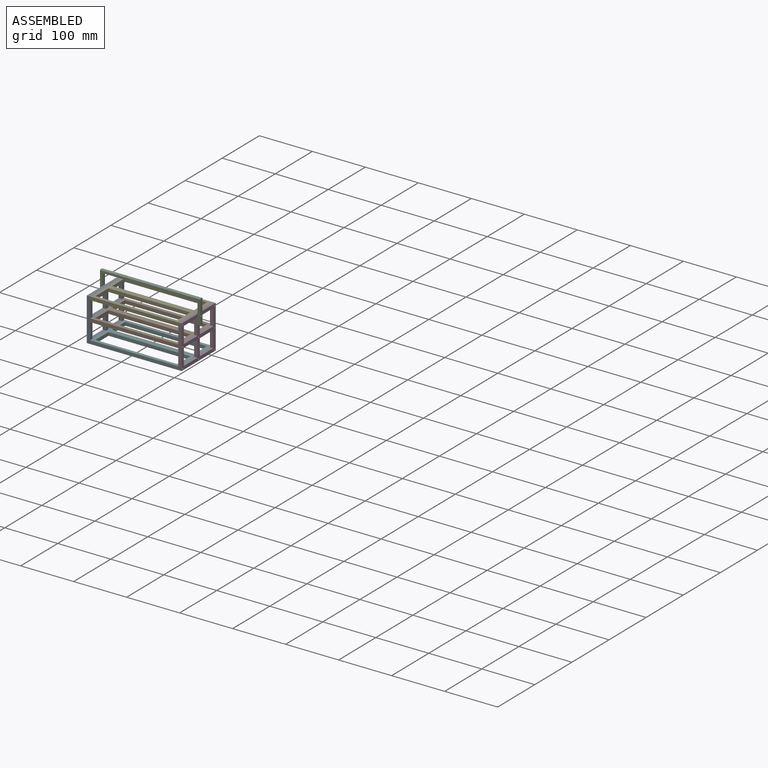
[diagram: assembled view]
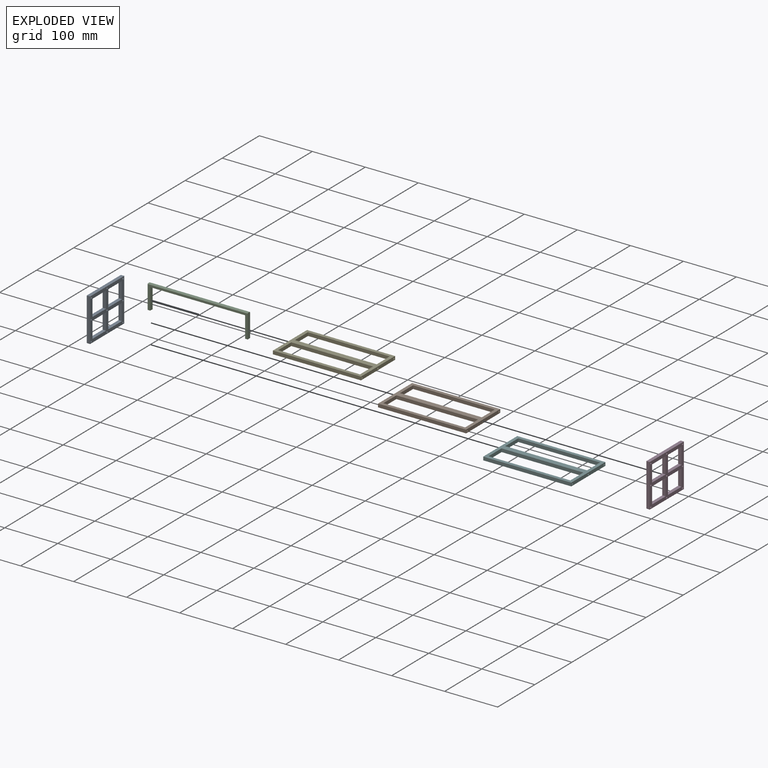
[diagram: exploded view]
GUIDED TOUR — MATED ASSEMBLY (Onshape document b10720512e3f0c0c5b2dce0c, AutoMate assembly b10720512e3f0c0c5b2dce0c_9de3e000fab1d22107636058_5e7fd03e79c85c1b4d76bef5_default)

This assembly has 6 components, labeled P0..P5 below (a component is one placed occurrence of a part; the same part can appear more than once), held together by 5 mates. A mate is a constraint between two components; its type names the relative motion it leaves free:
  PLANAR — leaves sliding in the plane through the listed point (normal = the listed direction) and rotation about that normal free.
Axis/direction vectors are unit vectors and 'through' points are millimeter coordinates, both in the assembly's world frame.

MATES
  1. PLANAR "Planar 3": P5 <-> P0, direction (-1.000, 0.000, 0.000) through (-172.89, -177.00, -43.11) mm
  2. PLANAR "Planar 4": P3 <-> P4, direction (-1.000, 0.000, 0.000) through (-6.69, -177.00, 31.59) mm
  3. PLANAR "Planar 2": P1 <-> P0, direction (-1.000, 0.000, 0.000) through (-172.89, -177.00, -5.76) mm
  4. PLANAR "Planar 5": P2 <-> P3, direction (-1.000, 0.000, 0.000) through (-0.34, -134.18, 31.59) mm
  5. PLANAR "Planar 1": P4 <-> P0, direction (-1.000, 0.000, 0.000) through (-172.89, -177.00, 31.59) mm

ASSEMBLY ORDER
  1. P0 — the base component [order verified]
  2. P2 [order verified]
  3. P4 [order verified]
  4. P1 [order verified]
  5. P5 [order verified]
  6. P3 [order verified]
Order-tag legend:
  [order verified] — this step's position reverses a verified removal order: the component was checked to insert without passing through the ones already placed.

Of the 6 components, 6 carry the full construction recipe — the FeatureScript program that regenerates the part's solid from scratch; the rest are supplied as boundary geometry only.
Each toured component is shown spotlighted twice — in the assembled view, then in the exploded view, where a leader line traces a displaced component back to its assembled socket (saturated green if recipe-attached, orange if geometry-only; every other component desaturated gray) — followed by its recipe or geometry summary and the mates that hold it.
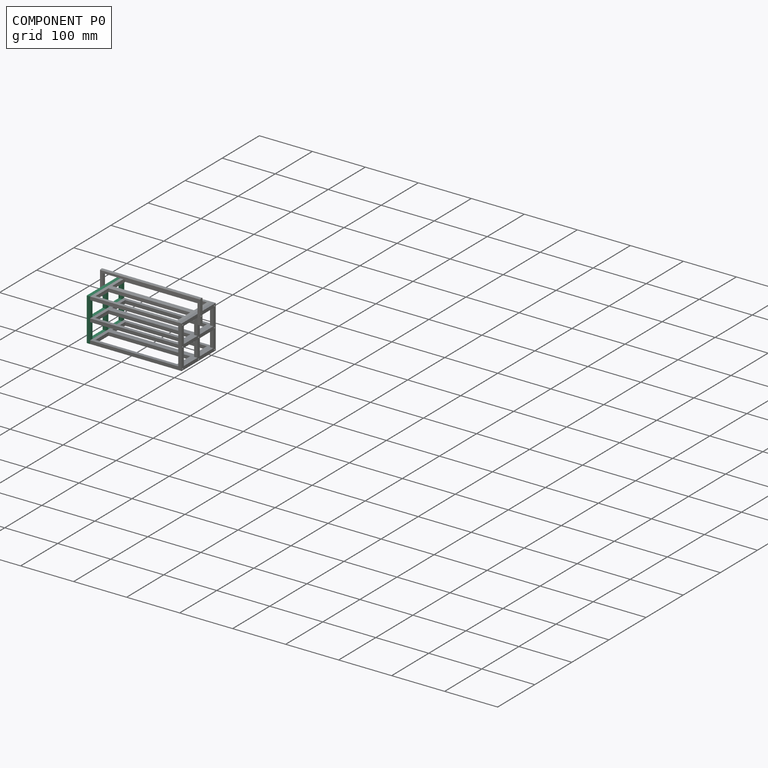
[diagram: component P0 — assembled]
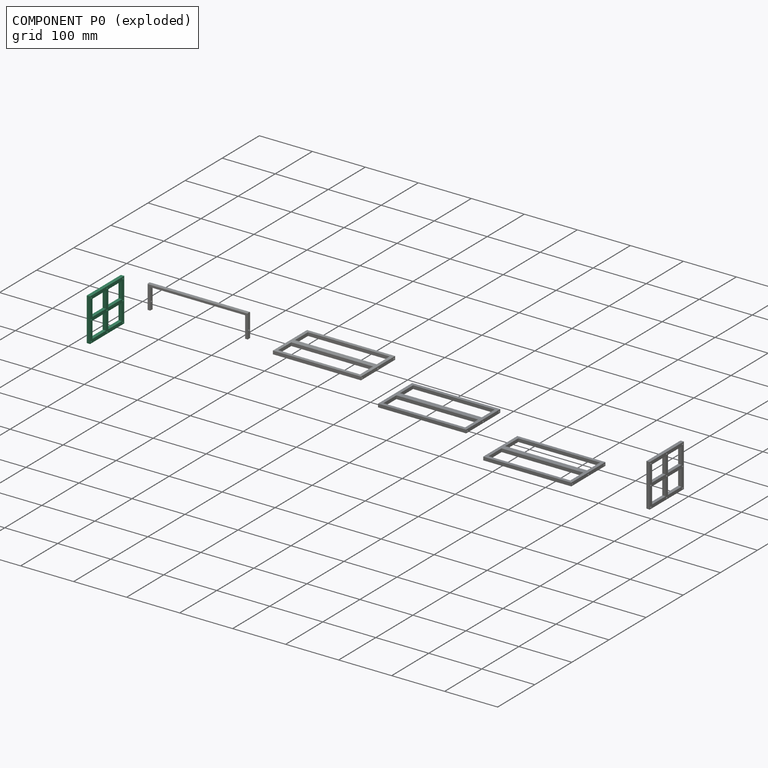
[diagram: component P0 — exploded]
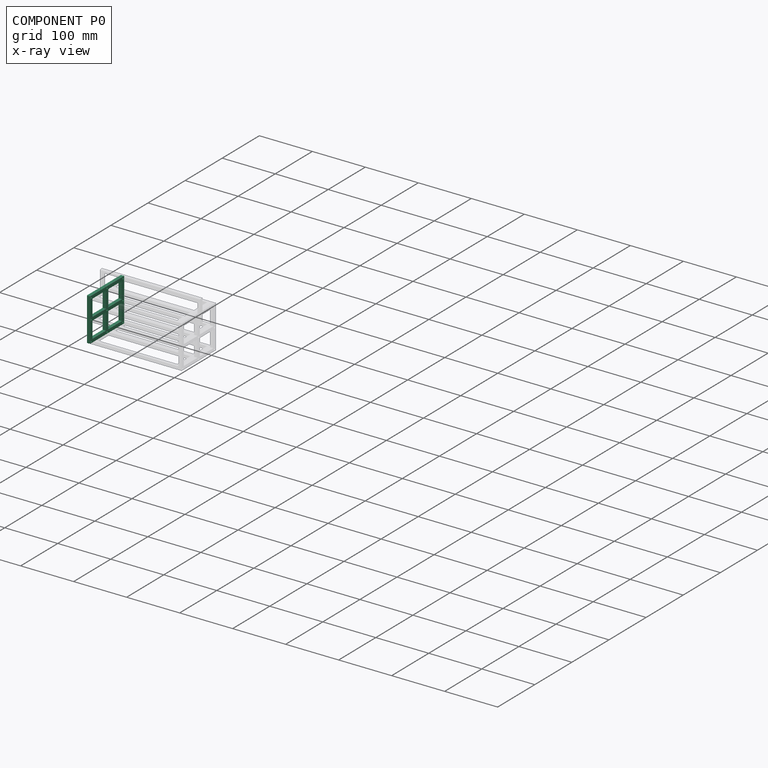
[diagram: component P0 — x-ray view]
COMPONENT P0 — recipe-attached (CADFS 00202749, mesh-verified: the recipe's output STEP matches this component's geometry to below the mesh-comparison resolution (tessellation chordal tolerance ~0.184 mm)).
Held by: PLANAR mate "Planar 3" to P5; PLANAR mate "Planar 2" to P1; PLANAR mate "Planar 1" to P4.
Construction recipe (FeatureScript — the CAD program that rebuilds this solid; sketch coordinates are in the units given by the * unit suffixes, e.g. mm):

FeatureScript 1511;
import(path : "onshape/std/geometry.fs", version : "1511.0");
import(path : "onshape/std/common.fs", version : "1511.0");
const mm = millimeter;
const VERTEX = EntityType.VERTEX;
const EDGE = EntityType.EDGE;
const FACE = EntityType.FACE;
const BODY = EntityType.BODY;
function v(x, y){return vector(x, y);}
function OD(order){return orderDisambiguation(order);}
function OSD(set){return originalSetDisambiguation(set);}
function TD(topology){return topologyDisambiguation(topology);}
function TDD(query){return trueDependencyDisambiguation(query);}
function sQuery(a, b, c) {return sketchEntityQuery(a, b, c);}

annotation { "Feature Type Name" : "Feature", "Feature Type Description" : "" }
export const myFeature = defineFeature(function(context is Context, id is Id, definition is map)
    precondition{}
    {
        {
            var Q0;
            Q0=qCreatedBy(makeId("Top.planeOp"),FACE);
            var sketch = newSketch(context, id + "F0", { "sketchPlane" : qUnion([Q0])});
            skLineSegment(sketch, "E0.bottom", {"start": v(46, -40.52) * mm, "end": v(-46, -40.53) * mm});
            skLineSegment(sketch, "E0.top", {"start": v(46, 40.53) * mm, "end": v(-46, 40.52) * mm});
            skLineSegment(sketch, "E0.left", {"start": v(46, -40.52) * mm, "end": v(46, 40.53) * mm});
            skLineSegment(sketch, "E0.right", {"start": v(-46, -40.53) * mm, "end": v(-46, 40.52) * mm});
            skPoint(sketch, "E0.middle", {"position": v(0, 0) * mm});
            skSolve(sketch);
        }
        {
            var Q0;
            Q0 = qSketchRegion(id + "F0", true);
            extrude(context, id + "F1", {"entities" : qUnion([Q0]), "depth" : 6.35 * mm});
        }
        {
            var Q0;
            Q0=makeQuery(id+"F1.opExtrude","CAP_FACE",FACE,{"disambiguationData":[OSD([sQuery(id+"F0.wireOp",EDGE,"E0.bottom"),sQuery(id+"F0.wireOp",EDGE,"E0.top"),sQuery(id+"F0.wireOp",EDGE,"E0.left"),sQuery(id+"F0.wireOp",EDGE,"E0.right")])],"isStart":false});
            var sketch = newSketch(context, id + "F2", { "sketchPlane" : qUnion([Q0])});
            skLineSegment(sketch, "E1.bottom", {"start": v(46, 40.53) * mm, "end": v(39.65, 40.53) * mm});
            skLineSegment(sketch, "E1.top", {"start": v(46, 34.18) * mm, "end": v(39.65, 34.18) * mm});
            skLineSegment(sketch, "E1.left", {"start": v(46, 40.53) * mm, "end": v(46, 34.18) * mm});
            skLineSegment(sketch, "E1.right", {"start": v(39.65, 40.53) * mm, "end": v(39.65, 34.18) * mm});
            skLineSegment(sketch, "E2.bottom", {"start": v(-46, -40.53) * mm, "end": v(-39.65, -40.53) * mm});
            skLineSegment(sketch, "E2.top", {"start": v(-46, -34.18) * mm, "end": v(-39.65, -34.18) * mm});
            skLineSegment(sketch, "E2.left", {"start": v(-46, -40.53) * mm, "end": v(-46, -34.18) * mm});
            skLineSegment(sketch, "E2.right", {"start": v(-39.65, -40.53) * mm, "end": v(-39.65, -34.18) * mm});
            skLineSegment(sketch, "E3.bottom", {"start": v(46, -40.52) * mm, "end": v(39.65, -40.52) * mm});
            skLineSegment(sketch, "E3.top", {"start": v(46, -34.18) * mm, "end": v(39.65, -34.18) * mm});
            skLineSegment(sketch, "E3.left", {"start": v(46, -40.52) * mm, "end": v(46, -34.18) * mm});
            skLineSegment(sketch, "E3.right", {"start": v(39.65, -40.52) * mm, "end": v(39.65, -34.18) * mm});
            skLineSegment(sketch, "E4.bottom", {"start": v(46, -3.17) * mm, "end": v(39.65, -3.17) * mm});
            skLineSegment(sketch, "E4.top", {"start": v(46, 3.17) * mm, "end": v(39.65, 3.17) * mm});
            skLineSegment(sketch, "E4.left", {"start": v(46, -3.17) * mm, "end": v(46, 3.17) * mm});
            skLineSegment(sketch, "E4.right", {"start": v(-46, -3.17) * mm, "end": v(-46, 3.17) * mm});
            skPoint(sketch, "E4.middle", {"position": v(0, 0) * mm});
            skLineSegment(sketch, "E5.left", {"start": v(46, 3.17) * mm, "end": v(46, -3.17) * mm});
            skLineSegment(sketch, "E5.right", {"start": v(39.65, 3.17) * mm, "end": v(39.65, -3.17) * mm});
            skLineSegment(sketch, "E6.bottom", {"start": v(-46, 3.17) * mm, "end": v(-39.65, 3.17) * mm});
            skLineSegment(sketch, "E6.top", {"start": v(-46, -3.17) * mm, "end": v(-39.65, -3.17) * mm});
            skLineSegment(sketch, "E6.left", {"start": v(-46, 3.17) * mm, "end": v(-46, -3.17) * mm});
            skLineSegment(sketch, "E6.right", {"start": v(-39.65, 3.17) * mm, "end": v(-39.65, -3.17) * mm});
            skLineSegment(sketch, "E7.trimOffspring", {"start": v(-39.65, 3.17) * mm, "end": v(-46, 3.17) * mm});
            skLineSegment(sketch, "E8.trimOffspring", {"start": v(-39.65, -3.17) * mm, "end": v(-46, -3.17) * mm});
            skLineSegment(sketch, "E9.bottom", {"start": v(-46, 40.52) * mm, "end": v(-39.65, 40.52) * mm});
            skLineSegment(sketch, "E9.top", {"start": v(-46, 34.17) * mm, "end": v(-39.65, 34.17) * mm});
            skLineSegment(sketch, "E9.left", {"start": v(-46, 40.52) * mm, "end": v(-46, 34.17) * mm});
            skLineSegment(sketch, "E9.right", {"start": v(-39.65, 40.52) * mm, "end": v(-39.65, 34.17) * mm});
            skPoint(sketch, "E10", {"position": v(-42.83, 37.35) * mm});
            skPoint(sketch, "E10.positionSnap0", {"position": v(-46, 37.35) * mm});
            skPoint(sketch, "E10.positionSnap1", {"position": v(-42.83, 40.52) * mm});
            skPoint(sketch, "E11.positionSnap1", {"position": v(0, 40.53) * mm});
            skPoint(sketch, "E12", {"position": v(42.82, 37.35) * mm});
            skPoint(sketch, "E12.positionSnap0", {"position": v(39.65, 37.35) * mm});
            skPoint(sketch, "E12.positionSnap1", {"position": v(42.82, 40.53) * mm});
            skPoint(sketch, "E13", {"position": v(-42.83, 0) * mm});
            skPoint(sketch, "E13.positionSnap0", {"position": v(-46, 0) * mm});
            skPoint(sketch, "E13.positionSnap1", {"position": v(-42.83, 3.17) * mm});
            skPoint(sketch, "E14", {"position": v(-42.82, -37.35) * mm});
            skPoint(sketch, "E14.positionSnap0", {"position": v(-46, -37.35) * mm});
            skPoint(sketch, "E14.positionSnap1", {"position": v(-42.82, -34.18) * mm});
            skPoint(sketch, "E15", {"position": v(42.83, 0) * mm});
            skPoint(sketch, "E15.positionSnap0", {"position": v(42.83, 3.17) * mm});
            skPoint(sketch, "E15.positionSnap1", {"position": v(46, 0) * mm});
            skPoint(sketch, "E16", {"position": v(42.83, -37.35) * mm});
            skPoint(sketch, "E16.positionSnap0", {"position": v(39.65, -37.35) * mm});
            skPoint(sketch, "E16.positionSnap1", {"position": v(42.83, -34.18) * mm});
            skPoint(sketch, "E17", {"position": v(0, 37.35) * mm});
            skLineSegment(sketch, "E18.bottom", {"start": v(3.17, 40.53) * mm, "end": v(-3.18, 40.53) * mm});
            skLineSegment(sketch, "E18.top", {"start": v(3.17, 34.18) * mm, "end": v(-3.18, 34.18) * mm});
            skLineSegment(sketch, "E18.left", {"start": v(3.17, 40.53) * mm, "end": v(3.17, 34.18) * mm});
            skLineSegment(sketch, "E18.right", {"start": v(-3.18, 40.53) * mm, "end": v(-3.18, 34.18) * mm});
            skLineSegment(sketch, "E19.bottom", {"start": v(3.18, -3.17) * mm, "end": v(-3.17, -3.18) * mm});
            skLineSegment(sketch, "E19.top", {"start": v(3.17, 3.18) * mm, "end": v(-3.18, 3.17) * mm});
            skLineSegment(sketch, "E19.left", {"start": v(3.18, -3.17) * mm, "end": v(3.17, 3.18) * mm});
            skLineSegment(sketch, "E19.right", {"start": v(-3.17, -3.18) * mm, "end": v(-3.18, 3.17) * mm});
            skPoint(sketch, "E20", {"position": v(0, -37.35) * mm});
            skLineSegment(sketch, "E21.bottom", {"start": v(3.18, -40.53) * mm, "end": v(-3.17, -40.53) * mm});
            skLineSegment(sketch, "E21.top", {"start": v(3.18, -34.18) * mm, "end": v(-3.17, -34.18) * mm});
            skLineSegment(sketch, "E21.left", {"start": v(3.18, -40.53) * mm, "end": v(3.18, -34.18) * mm});
            skLineSegment(sketch, "E21.right", {"start": v(-3.17, -40.53) * mm, "end": v(-3.17, -34.18) * mm});
            skSolve(sketch);
        }
        {
            var Q0;
            Q0=makeQuery(id+"F1.opExtrude","CAP_FACE",FACE,{"disambiguationData":[OSD([sQuery(id+"F0.wireOp",EDGE,"E0.bottom"),sQuery(id+"F0.wireOp",EDGE,"E0.top"),sQuery(id+"F0.wireOp",EDGE,"E0.left"),sQuery(id+"F0.wireOp",EDGE,"E0.right")])],"isStart":true});
            var sketch = newSketch(context, id + "F3", { "sketchPlane" : qUnion([Q0])});
            skLineSegment(sketch, "E22.bottom", {"start": v(-46, 40.53) * mm, "end": v(46, 40.53) * mm});
            skLineSegment(sketch, "E22.top", {"start": v(-46, -40.53) * mm, "end": v(46, -40.53) * mm});
            skLineSegment(sketch, "E22.left", {"start": v(-46, 40.53) * mm, "end": v(-46, -40.52) * mm});
            skLineSegment(sketch, "E22.right", {"start": v(46, 40.52) * mm, "end": v(46, -40.53) * mm});
            skLineSegment(sketch, "E23.top", {"start": v(-39.65, 34.18) * mm, "end": v(-3.17, 34.18) * mm});
            skLineSegment(sketch, "E23.right", {"start": v(46, 40.53) * mm, "end": v(46, 34.18) * mm});
            skLineSegment(sketch, "E24.top", {"start": v(-39.65, -34.17) * mm, "end": v(39.65, -34.17) * mm});
            skLineSegment(sketch, "E24.left", {"start": v(-46, -40.52) * mm, "end": v(-46, -34.17) * mm});
            skLineSegment(sketch, "E24.right", {"start": v(46, -40.53) * mm, "end": v(46, -34.17) * mm});
            skLineSegment(sketch, "E25.top", {"start": v(-46, -40.52) * mm, "end": v(-39.65, -40.52) * mm});
            skLineSegment(sketch, "E25.right", {"start": v(-39.65, 34.18) * mm, "end": v(-39.65, 3.17) * mm});
            skLineSegment(sketch, "E26.bottom", {"start": v(46, 40.53) * mm, "end": v(39.65, 40.53) * mm});
            skLineSegment(sketch, "E26.top", {"start": v(46, -40.53) * mm, "end": v(39.65, -40.53) * mm});
            skLineSegment(sketch, "E26.right", {"start": v(39.65, 34.18) * mm, "end": v(39.65, 3.17) * mm});
            skLineSegment(sketch, "E27.bottom", {"start": v(39.65, -3.18) * mm, "end": v(3.18, -3.18) * mm});
            skLineSegment(sketch, "E27.top", {"start": v(39.65, 3.17) * mm, "end": v(3.18, 3.17) * mm});
            skLineSegment(sketch, "E27.left", {"start": v(46, -3.18) * mm, "end": v(46, 3.17) * mm});
            skLineSegment(sketch, "E27.right", {"start": v(-46, -3.18) * mm, "end": v(-46, 3.17) * mm});
            skPoint(sketch, "E27.middle", {"position": v(0, 0) * mm});
            skLineSegment(sketch, "E28.bottom", {"start": v(3.18, 40.53) * mm, "end": v(-3.17, 40.53) * mm});
            skLineSegment(sketch, "E28.top", {"start": v(3.18, -40.53) * mm, "end": v(-3.17, -40.53) * mm});
            skLineSegment(sketch, "E28.left", {"start": v(3.18, 34.18) * mm, "end": v(3.18, 3.17) * mm});
            skLineSegment(sketch, "E28.right", {"start": v(-3.17, 34.18) * mm, "end": v(-3.17, 3.17) * mm});
            skPoint(sketch, "E29.orphan", {"position": v(-46, 34.18) * mm});
            skPoint(sketch, "E30.orphan", {"position": v(-39.65, 40.53) * mm});
            skLineSegment(sketch, "E31.trimOffspring", {"start": v(3.18, 34.18) * mm, "end": v(39.65, 34.18) * mm});
            skLineSegment(sketch, "E32.trimOffspring", {"start": v(-3.17, 3.17) * mm, "end": v(-39.65, 3.17) * mm});
            skLineSegment(sketch, "E33.trimOffspring", {"start": v(-3.17, -3.18) * mm, "end": v(-39.65, -3.18) * mm});
            skLineSegment(sketch, "E34.trimOffspring", {"start": v(-3.17, -3.18) * mm, "end": v(-3.17, -34.17) * mm});
            skLineSegment(sketch, "E35.trimOffspring", {"start": v(-39.65, -3.18) * mm, "end": v(-39.65, -34.17) * mm});
            skLineSegment(sketch, "E36.trimOffspring", {"start": v(3.18, -3.18) * mm, "end": v(3.18, -34.17) * mm});
            skLineSegment(sketch, "E37.trimOffspring", {"start": v(39.65, -3.18) * mm, "end": v(39.65, -34.17) * mm});
            skLineSegment(sketch, "E38.bottom", {"start": v(-46, 40.53) * mm, "end": v(-39.65, 40.53) * mm});
            skLineSegment(sketch, "E38.top", {"start": v(-46, 34.18) * mm, "end": v(-39.65, 34.18) * mm});
            skLineSegment(sketch, "E38.left", {"start": v(-46, 40.53) * mm, "end": v(-46, 34.18) * mm});
            skLineSegment(sketch, "E38.right", {"start": v(-39.65, 40.53) * mm, "end": v(-39.65, 34.18) * mm});
            skLineSegment(sketch, "E39.top", {"start": v(46, 34.18) * mm, "end": v(39.65, 34.18) * mm});
            skLineSegment(sketch, "E39.left", {"start": v(46, 40.52) * mm, "end": v(46, 34.18) * mm});
            skLineSegment(sketch, "E39.right", {"start": v(39.65, 40.53) * mm, "end": v(39.65, 34.18) * mm});
            skLineSegment(sketch, "E40.bottom", {"start": v(-3.17, 40.53) * mm, "end": v(3.18, 40.53) * mm});
            skLineSegment(sketch, "E40.top", {"start": v(-3.17, 34.18) * mm, "end": v(3.18, 34.18) * mm});
            skLineSegment(sketch, "E40.left", {"start": v(-3.17, 40.53) * mm, "end": v(-3.17, 34.18) * mm});
            skLineSegment(sketch, "E40.right", {"start": v(3.18, 40.53) * mm, "end": v(3.18, 34.18) * mm});
            skLineSegment(sketch, "E41.bottom", {"start": v(-46, 3.17) * mm, "end": v(-39.65, 3.17) * mm});
            skLineSegment(sketch, "E41.top", {"start": v(-46, -3.18) * mm, "end": v(-39.65, -3.18) * mm});
            skLineSegment(sketch, "E41.left", {"start": v(-46, 3.17) * mm, "end": v(-46, -3.18) * mm});
            skLineSegment(sketch, "E41.right", {"start": v(-39.65, 3.17) * mm, "end": v(-39.65, -3.18) * mm});
            skLineSegment(sketch, "E42.bottom", {"start": v(-3.17, 3.17) * mm, "end": v(3.18, 3.17) * mm});
            skLineSegment(sketch, "E42.top", {"start": v(-3.17, -3.18) * mm, "end": v(3.18, -3.18) * mm});
            skLineSegment(sketch, "E42.left", {"start": v(-3.17, 3.17) * mm, "end": v(-3.17, -3.18) * mm});
            skLineSegment(sketch, "E42.right", {"start": v(3.18, 3.17) * mm, "end": v(3.18, -3.18) * mm});
            skLineSegment(sketch, "E43.bottom", {"start": v(46, 3.17) * mm, "end": v(39.65, 3.17) * mm});
            skLineSegment(sketch, "E43.top", {"start": v(46, -3.18) * mm, "end": v(39.65, -3.18) * mm});
            skLineSegment(sketch, "E43.left", {"start": v(46, 3.17) * mm, "end": v(46, -3.18) * mm});
            skLineSegment(sketch, "E43.right", {"start": v(39.65, 3.17) * mm, "end": v(39.65, -3.18) * mm});
            skLineSegment(sketch, "E44.bottom", {"start": v(-46, -34.17) * mm, "end": v(-39.65, -34.17) * mm});
            skLineSegment(sketch, "E44.left", {"start": v(-46, -34.17) * mm, "end": v(-46, -40.52) * mm});
            skLineSegment(sketch, "E44.right", {"start": v(-39.65, -34.17) * mm, "end": v(-39.65, -40.52) * mm});
            skLineSegment(sketch, "E45.bottom", {"start": v(-3.17, -34.17) * mm, "end": v(3.18, -34.17) * mm});
            skLineSegment(sketch, "E45.top", {"start": v(-3.17, -40.53) * mm, "end": v(3.18, -40.53) * mm});
            skLineSegment(sketch, "E45.left", {"start": v(-3.17, -34.17) * mm, "end": v(-3.17, -40.53) * mm});
            skLineSegment(sketch, "E45.right", {"start": v(3.18, -34.17) * mm, "end": v(3.18, -40.53) * mm});
            skLineSegment(sketch, "E46.bottom", {"start": v(39.65, -34.17) * mm, "end": v(46, -34.17) * mm});
            skLineSegment(sketch, "E46.top", {"start": v(39.65, -40.53) * mm, "end": v(46, -40.53) * mm});
            skLineSegment(sketch, "E46.left", {"start": v(39.65, -34.17) * mm, "end": v(39.65, -40.53) * mm});
            skLineSegment(sketch, "E46.right", {"start": v(46, -34.17) * mm, "end": v(46, -40.53) * mm});
            skPoint(sketch, "E47", {"position": v(-42.82, 37.35) * mm});
            skPoint(sketch, "E47.positionSnap0", {"position": v(-46, 37.35) * mm});
            skPoint(sketch, "E47.positionSnap1", {"position": v(-42.82, 40.53) * mm});
            skPoint(sketch, "E48", {"position": v(0, 37.35) * mm});
            skPoint(sketch, "E48.positionSnap0", {"position": v(-3.17, 37.35) * mm});
            skPoint(sketch, "E48.positionSnap1", {"position": v(0, 40.53) * mm});
            skPoint(sketch, "E49", {"position": v(42.83, 37.35) * mm});
            skPoint(sketch, "E49.positionSnap0", {"position": v(39.65, 37.35) * mm});
            skPoint(sketch, "E49.positionSnap1", {"position": v(42.83, 40.53) * mm});
            skPoint(sketch, "E50", {"position": v(-42.82, 0) * mm});
            skPoint(sketch, "E50.positionSnap0", {"position": v(-46, 0) * mm});
            skPoint(sketch, "E50.positionSnap1", {"position": v(-42.82, 3.17) * mm});
            skPoint(sketch, "E51", {"position": v(42.83, 0) * mm});
            skPoint(sketch, "E51.positionSnap0", {"position": v(42.83, 3.17) * mm});
            skPoint(sketch, "E51.positionSnap1", {"position": v(39.65, 0) * mm});
            skPoint(sketch, "E52", {"position": v(42.83, -37.35) * mm});
            skPoint(sketch, "E52.positionSnap0", {"position": v(39.65, -37.35) * mm});
            skPoint(sketch, "E52.positionSnap1", {"position": v(42.83, -34.17) * mm});
            skPoint(sketch, "E53", {"position": v(0, -37.35) * mm});
            skPoint(sketch, "E53.positionSnap0", {"position": v(-3.17, -37.35) * mm});
            skPoint(sketch, "E53.positionSnap1", {"position": v(0, -34.17) * mm});
            skPoint(sketch, "E54", {"position": v(-42.83, -37.35) * mm});
            skPoint(sketch, "E54.positionSnap0", {"position": v(-42.83, -34.17) * mm});
            skPoint(sketch, "E54.positionSnap1", {"position": v(-46, -37.35) * mm});
            skPoint(sketch, "E55", {"position": v(0, -30.28) * mm});
            skSolve(sketch);
        }
        {
            var Q0;
            Q0=makeQuery(id+"F3.imprint","IMPRINT",FACE,{"disambiguationData":[TD([[makeQuery(id+"F3.imprint","IMPRINT",EDGE,{"derivedFrom":sQuery(id+"F3.wireOp",EDGE,"E23.top")}),-1.0]])]});
            var Q1;
            Q1=makeQuery(id+"F3.imprint","IMPRINT",FACE,{"disambiguationData":[TD([[makeQuery(id+"F3.imprint","IMPRINT",EDGE,{"derivedFrom":sQuery(id+"F3.wireOp",EDGE,"E33.trimOffspring")}),1.0]])]});
            var Q2;
            Q2=makeQuery(id+"F3.imprint","IMPRINT",FACE,{"disambiguationData":[TD([[makeQuery(id+"F3.imprint","IMPRINT",EDGE,{"derivedFrom":sQuery(id+"F3.wireOp",EDGE,"E26.right")}),-1.0]])]});
            var Q3;
            Q3=makeQuery(id+"F3.imprint","IMPRINT",FACE,{"disambiguationData":[TD([[makeQuery(id+"F3.imprint","IMPRINT",EDGE,{"derivedFrom":sQuery(id+"F3.wireOp",EDGE,"E27.bottom")}),1.0]])]});
            extrude(context, id + "F4", {"entities" : qUnion([Q0, Q1, Q2, Q3]), "operationType" : NewBodyOperationType.REMOVE, "oppositeDirection" : true, "depth" : 6.35 * mm});
        }
        {
            var Q0;
            Q0=sQuery(id+"F2.wireOp",VERTEX,"E10");
            var Q1;
            Q1=sQuery(id+"F2.wireOp",VERTEX,"E17");
            var Q2;
            Q2=sQuery(id+"F2.wireOp",VERTEX,"E12");
            var Q3;
            Q3=sQuery(id+"F2.wireOp",VERTEX,"E13");
            var Q4;
            Q4=sQuery(id+"F2.wireOp",VERTEX,"E4.middle");
            var Q5;
            Q5=sQuery(id+"F2.wireOp",VERTEX,"E15");
            var Q6;
            Q6=sQuery(id+"F2.wireOp",VERTEX,"E14");
            var Q7;
            Q7=sQuery(id+"F2.wireOp",VERTEX,"E20");
            var Q8;
            Q8=sQuery(id+"F2.wireOp",VERTEX,"E16");
            var Q9;
            Q9=makeQuery(id+"F1.opExtrude","SWEPT_BODY",BODY,{"disambiguationData":[OSD([sQuery(id+"F0.wireOp",EDGE,"E0.bottom"),sQuery(id+"F0.wireOp",EDGE,"E0.top"),sQuery(id+"F0.wireOp",EDGE,"E0.left"),sQuery(id+"F0.wireOp",EDGE,"E0.right")])]});
            hole(context, id + "F5", {"style" : HoleStyle.SIMPLE, "endStyle" : HoleEndStyle.THROUGH, "standardTappedOrClearance" : lookupTablePath({ "standard" : "ISO", "size" : "3", "type" : "Drilled" }), "standardBlindInLast" : lookupTablePath({ "standard" : "ISO", "size" : "3", "type" : "Drilled" }), "holeDiameter" : 3 * mm, "startFromSketch" : true, "locations" : qUnion([Q0, Q1, Q2, Q3, Q4, Q5, Q6, Q7, Q8]), "scope" : qUnion([Q9]), "isTappedThrough" : true});
        }
    });
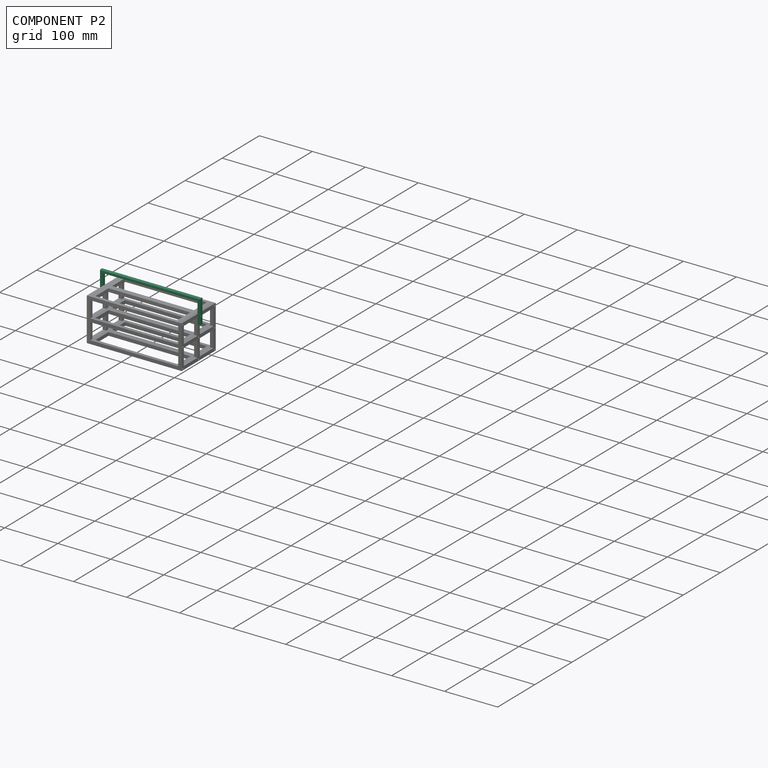
[diagram: component P2 — assembled]
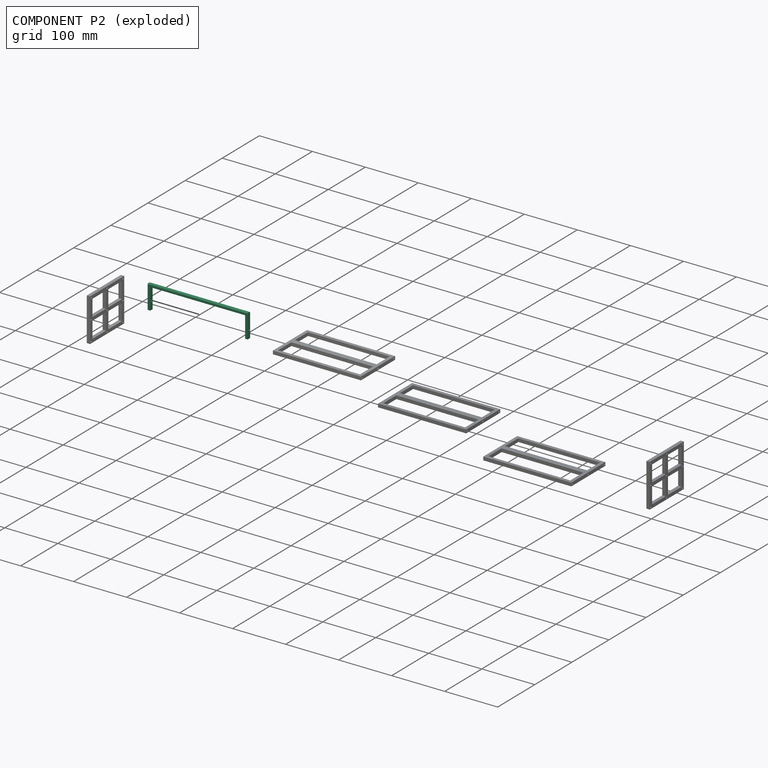
[diagram: component P2 — exploded]
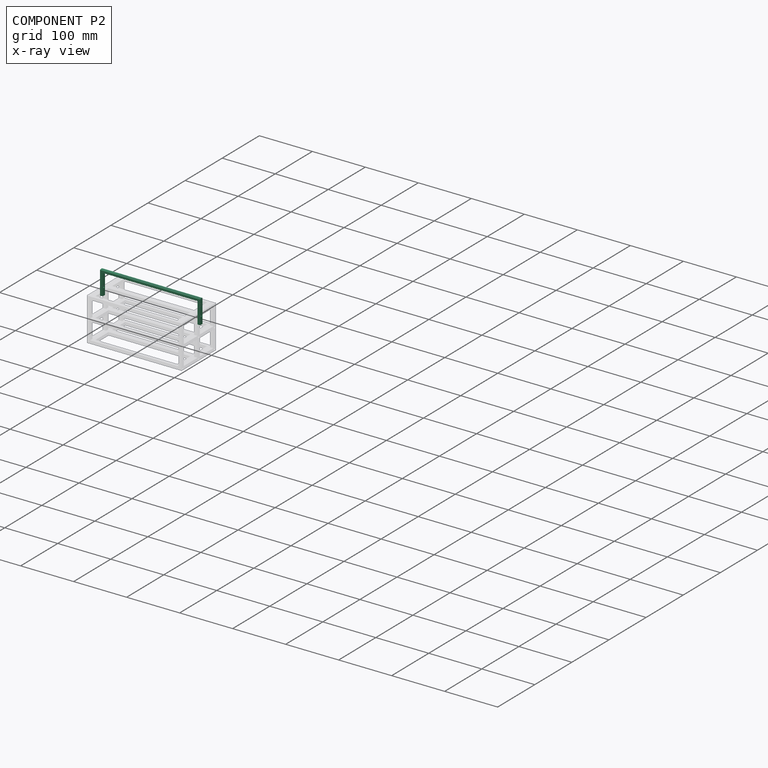
[diagram: component P2 — x-ray view]
COMPONENT P2 — recipe-attached (CADFS 00202747, mesh-verified: the recipe's output STEP matches this component's geometry to below the mesh-comparison resolution (tessellation chordal tolerance ~0.291 mm)).
Held by: PLANAR mate "Planar 5" to P3.
Construction recipe (FeatureScript — the CAD program that rebuilds this solid; sketch coordinates are in the units given by the * unit suffixes, e.g. mm):

FeatureScript 1511;
import(path : "onshape/std/geometry.fs", version : "1511.0");
import(path : "onshape/std/common.fs", version : "1511.0");
const mm = millimeter;
const VERTEX = EntityType.VERTEX;
const EDGE = EntityType.EDGE;
const FACE = EntityType.FACE;
const BODY = EntityType.BODY;
function v(x, y){return vector(x, y);}
function OD(order){return orderDisambiguation(order);}
function OSD(set){return originalSetDisambiguation(set);}
function TD(topology){return topologyDisambiguation(topology);}
function TDD(query){return trueDependencyDisambiguation(query);}
function sQuery(a, b, c) {return sketchEntityQuery(a, b, c);}

annotation { "Feature Type Name" : "Feature", "Feature Type Description" : "" }
export const myFeature = defineFeature(function(context is Context, id is Id, definition is map)
    precondition{}
    {
        {
            var Q0;
            Q0=qCreatedBy(makeId("Top.planeOp"),FACE);
            var sketch = newSketch(context, id + "F0", { "sketchPlane" : qUnion([Q0])});
            skLineSegment(sketch, "E0.top", {"start": v(94.45, 22.5) * mm, "end": v(-94.45, 22.5) * mm});
            skLineSegment(sketch, "E0.left", {"start": v(94.45, -22.5) * mm, "end": v(94.45, 22.5) * mm});
            skLineSegment(sketch, "E0.right", {"start": v(-94.45, -22.5) * mm, "end": v(-94.45, 22.5) * mm});
            skPoint(sketch, "E0.middle", {"position": v(0, 0) * mm});
            skLineSegment(sketch, "E1.left", {"start": v(89.45, -15.17) * mm, "end": v(89.45, 15.17) * mm});
            skLineSegment(sketch, "E1.right", {"start": v(-89.45, -15.17) * mm, "end": v(-89.45, 15.17) * mm});
            skLineSegment(sketch, "E2", {"start": v(-94.45, -22.5) * mm, "end": v(-89.45, -22.5) * mm});
            skLineSegment(sketch, "E3", {"start": v(-89.45, -22.5) * mm, "end": v(-89.45, -15.17) * mm});
            skLineSegment(sketch, "E4", {"start": v(89.45, -15.17) * mm, "end": v(89.45, -22.5) * mm});
            skLineSegment(sketch, "E5", {"start": v(89.45, -22.5) * mm, "end": v(94.45, -22.5) * mm});
            skLineSegment(sketch, "E6", {"start": v(-89.45, 17.5) * mm, "end": v(89.45, 17.5) * mm});
            skLineSegment(sketch, "E7", {"start": v(-89.45, 15.17) * mm, "end": v(-89.45, 17.5) * mm});
            skLineSegment(sketch, "E8", {"start": v(89.45, 15.17) * mm, "end": v(89.45, 17.5) * mm});
            skPoint(sketch, "E9.orphan", {"position": v(-94.45, 17.5) * mm});
            skSolve(sketch);
        }
        {
            var Q0;
            Q0 = qSketchRegion(id + "F0", true);
            extrude(context, id + "F1", {"entities" : qUnion([Q0]), "endBound" : BoundingType.SYMMETRIC, "oppositeDirection" : true, "depth" : 6.35 * mm});
        }
        {
            var Q0;
            Q0=makeQuery(id+"F1.opExtrude","SWEPT_FACE",FACE,{"disambiguationData":[OSD([sQuery(id+"F0.wireOp",EDGE,"E0.right")])]});
            var sketch = newSketch(context, id + "F2", { "sketchPlane" : qUnion([Q0])});
            skPoint(sketch, "E10", {"position": v(7.5, 0) * mm});
            skSolve(sketch);
        }
        {
            var Q0;
            Q0=sQuery(id+"F2.wireOp",VERTEX,"E10");
            var Q1;
            Q1=makeQuery(id+"F1.opExtrude","SWEPT_BODY",BODY,{"disambiguationData":[OSD([sQuery(id+"F0.wireOp",EDGE,"E0.top"),sQuery(id+"F0.wireOp",EDGE,"E0.left"),sQuery(id+"F0.wireOp",EDGE,"E0.right"),sQuery(id+"F0.wireOp",EDGE,"E1.left"),sQuery(id+"F0.wireOp",EDGE,"E1.right"),sQuery(id+"F0.wireOp",EDGE,"E2"),sQuery(id+"F0.wireOp",EDGE,"E3"),sQuery(id+"F0.wireOp",EDGE,"E4"),sQuery(id+"F0.wireOp",EDGE,"E5"),sQuery(id+"F0.wireOp",EDGE,"E6"),sQuery(id+"F0.wireOp",EDGE,"E7"),sQuery(id+"F0.wireOp",EDGE,"E8")])]});
            hole(context, id + "F3", {"style" : HoleStyle.SIMPLE, "endStyle" : HoleEndStyle.THROUGH, "standardTappedOrClearance" : lookupTablePath({ "standard" : "ISO", "size" : "3", "type" : "Drilled" }), "standardBlindInLast" : lookupTablePath({ "standard" : "ISO", "size" : "3", "type" : "Drilled" }), "holeDiameter" : 3 * mm, "startFromSketch" : true, "locations" : qUnion([Q0]), "scope" : qUnion([Q1]), "isTappedThrough" : true});
        }
        {
            var Q0;
            Q0=makeQuery(id+"F1.opExtrude","CAP_EDGE",EDGE,{"disambiguationData":[OSD([sQuery(id+"F0.wireOp",EDGE,"E0.top")])],"isStart":true});
            chamfer(context, id + "F4", {"entities" : qUnion([Q0]), "chamferType" : ChamferType.OFFSET_ANGLE, "width" : 1 * mm, "oppositeDirection" : false, "angle" : 45 * degree, "tangentPropagation" : true});
        }
        {
            var Q0;
            Q0=makeQuery(id+"F1.opExtrude","CAP_EDGE",EDGE,{"disambiguationData":[OSD([sQuery(id+"F0.wireOp",EDGE,"E0.top")])],"isStart":false});
            chamfer(context, id + "F5", {"entities" : qUnion([Q0]), "chamferType" : ChamferType.OFFSET_ANGLE, "width" : 1 * mm, "oppositeDirection" : false, "angle" : 45 * degree, "tangentPropagation" : true});
        }
    });
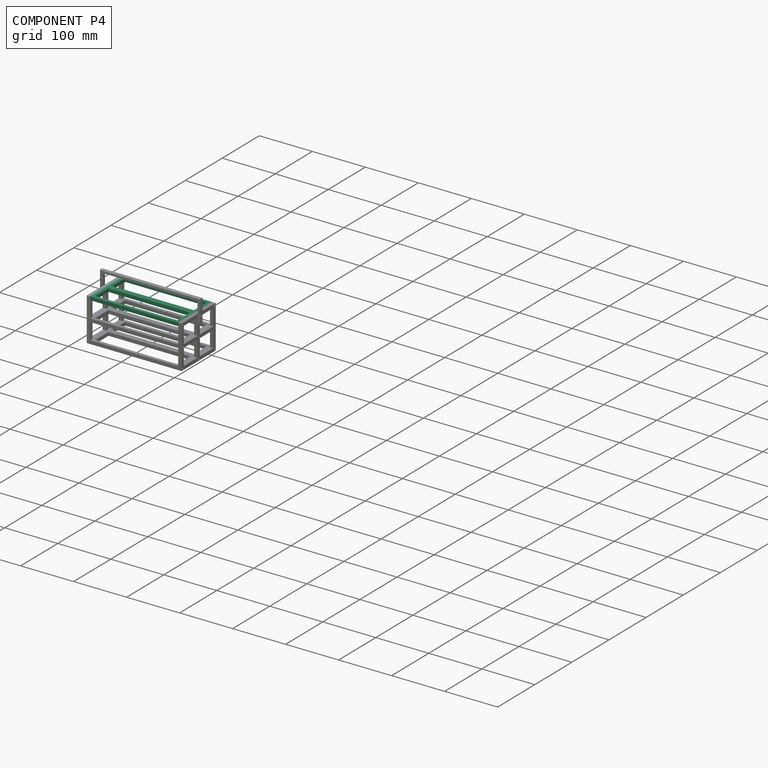
[diagram: component P4 — assembled]
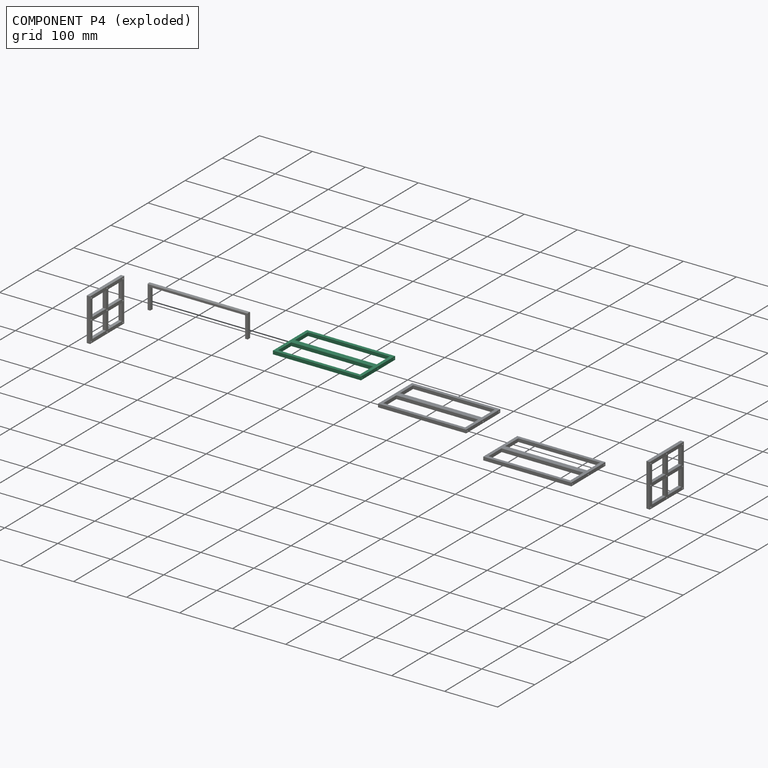
[diagram: component P4 — exploded]
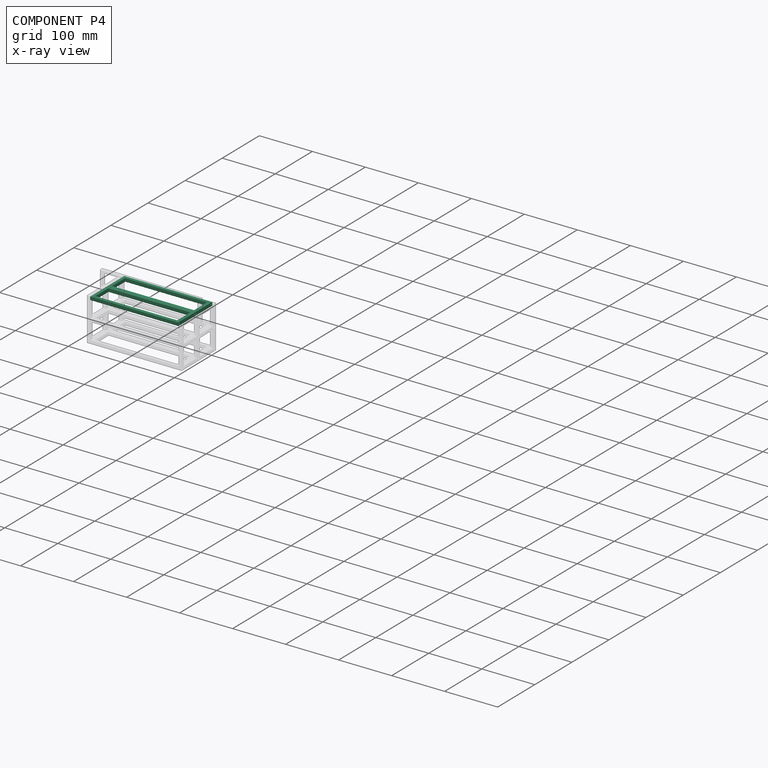
[diagram: component P4 — x-ray view]
COMPONENT P4 — same part as P1 (CADFS 00202748); its construction recipe is shown at P1.
Held by: PLANAR mate "Planar 4" to P3; PLANAR mate "Planar 1" to P0.
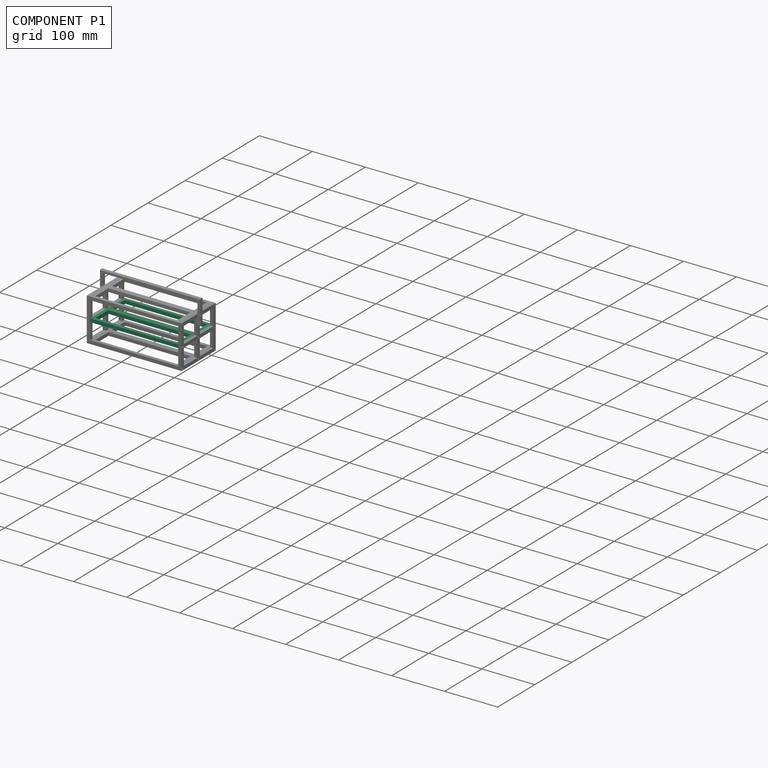
[diagram: component P1 — assembled]
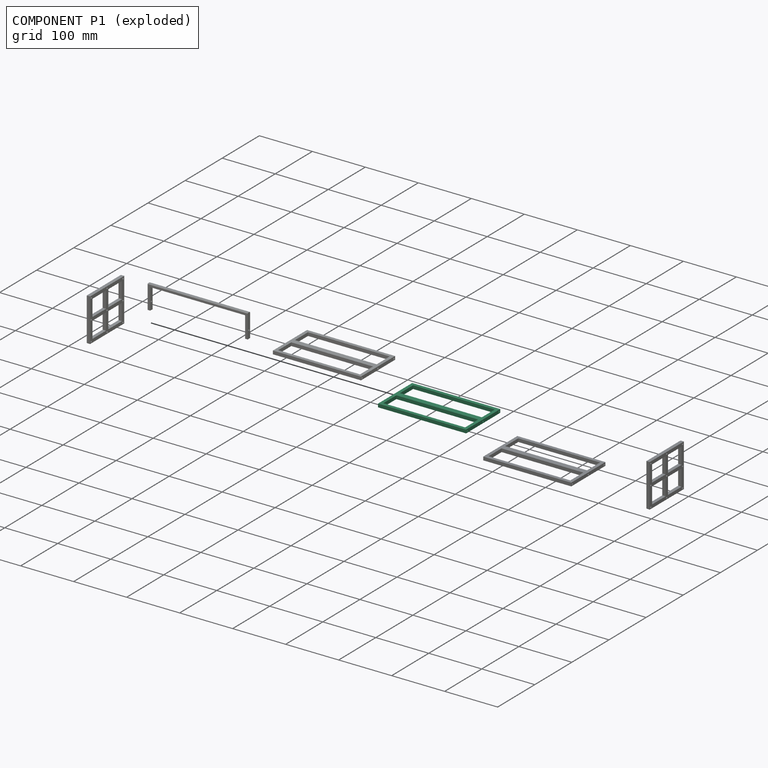
[diagram: component P1 — exploded]
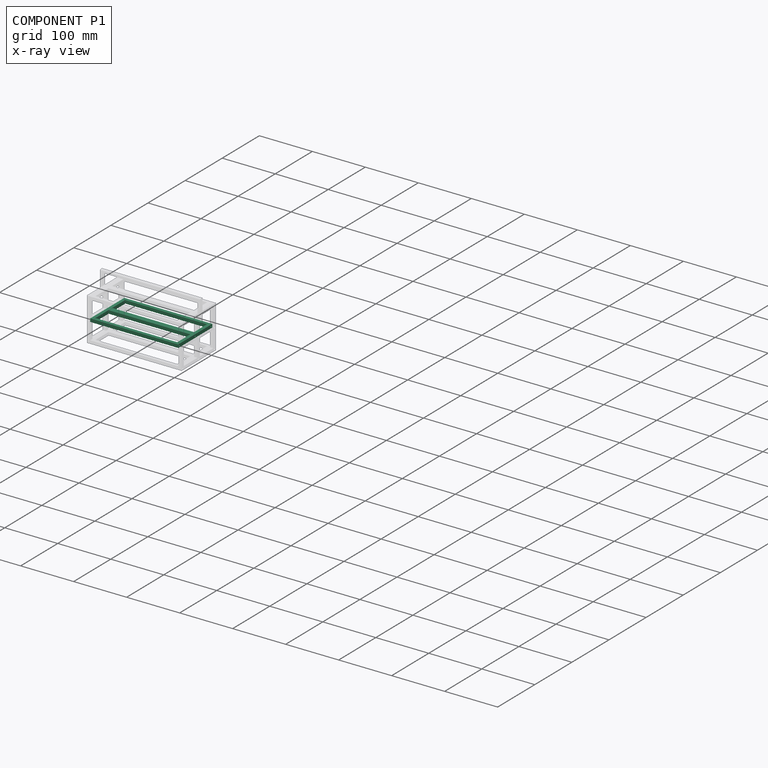
[diagram: component P1 — x-ray view]
COMPONENT P1 — recipe-attached (CADFS 00202748, mesh-verified: the recipe's output STEP matches this component's geometry to below the mesh-comparison resolution (tessellation chordal tolerance ~0.285 mm)).
Held by: PLANAR mate "Planar 2" to P0.
Construction recipe (FeatureScript — the CAD program that rebuilds this solid; sketch coordinates are in the units given by the * unit suffixes, e.g. mm):

FeatureScript 1511;
import(path : "onshape/std/geometry.fs", version : "1511.0");
import(path : "onshape/std/common.fs", version : "1511.0");
const mm = millimeter;
const VERTEX = EntityType.VERTEX;
const EDGE = EntityType.EDGE;
const FACE = EntityType.FACE;
const BODY = EntityType.BODY;
function v(x, y){return vector(x, y);}
function OD(order){return orderDisambiguation(order);}
function OSD(set){return originalSetDisambiguation(set);}
function TD(topology){return topologyDisambiguation(topology);}
function TDD(query){return trueDependencyDisambiguation(query);}
function sQuery(a, b, c) {return sketchEntityQuery(a, b, c);}

annotation { "Feature Type Name" : "Feature", "Feature Type Description" : "" }
export const myFeature = defineFeature(function(context is Context, id is Id, definition is map)
    precondition{}
    {
        {
            var Q0;
            Q0=qCreatedBy(makeId("Top.planeOp"),FACE);
            var sketch = newSketch(context, id + "F0", { "sketchPlane" : qUnion([Q0])});
            skLineSegment(sketch, "E0.bottom", {"start": v(83.1, -46) * mm, "end": v(-83.1, -46) * mm});
            skLineSegment(sketch, "E0.top", {"start": v(83.1, 46) * mm, "end": v(-83.1, 46) * mm});
            skLineSegment(sketch, "E0.left", {"start": v(83.1, -46) * mm, "end": v(83.1, 46) * mm});
            skLineSegment(sketch, "E0.right", {"start": v(-83.1, -46) * mm, "end": v(-83.1, 46) * mm});
            skPoint(sketch, "E0.middle", {"position": v(0, 0) * mm});
            skLineSegment(sketch, "E1.bottom", {"start": v(83.1, -5) * mm, "end": v(-83.1, -5) * mm});
            skLineSegment(sketch, "E1.top", {"start": v(83.1, 5) * mm, "end": v(-83.1, 5) * mm});
            skLineSegment(sketch, "E1.left", {"start": v(83.1, -5) * mm, "end": v(83.1, 5) * mm});
            skLineSegment(sketch, "E1.right", {"start": v(-83.1, -5) * mm, "end": v(-83.1, 5) * mm});
            skLineSegment(sketch, "E2", {"start": v(-83.1, 40) * mm, "end": v(83.1, 40) * mm});
            skLineSegment(sketch, "E3", {"start": v(-83.1, -40) * mm, "end": v(83.1, -40) * mm});
            skLineSegment(sketch, "E4", {"start": v(-77.1, 46) * mm, "end": v(-77.1, -46) * mm});
            skLineSegment(sketch, "E5", {"start": v(77.1, 46) * mm, "end": v(77.1, -46) * mm});
            skPoint(sketch, "E6", {"position": v(-83.1, -3) * mm});
            skPoint(sketch, "E7", {"position": v(83.1, -3) * mm});
            skPoint(sketch, "E8", {"position": v(-83.1, 3) * mm});
            skPoint(sketch, "E9", {"position": v(83.1, 3) * mm});
            skSolve(sketch);
        }
        {
            var Q0;
            {var subQ0=sQuery(id+"F0.wireOp",EDGE,"E0.bottom");Q0=makeQuery(id+"F0.imprint","IMPRINT",FACE,{"disambiguationData":[TD([[makeQuery(id+"F0.imprint","IMPRINT",EDGE,{"derivedFrom":subQ0}),-1.0]])]});}
            var Q1;
            {var subQ0=sQuery(id+"F0.wireOp",EDGE,"E0.top");Q1=makeQuery(id+"F0.imprint","IMPRINT",FACE,{"disambiguationData":[TD([[makeQuery(id+"F0.imprint","IMPRINT",EDGE,{"derivedFrom":subQ0}),1.0]])]});}
            var Q2;
            Q2=makeQuery(id+"F0.imprint","IMPRINT",FACE,{"disambiguationData":[TD([[makeQuery(id+"F0.imprint","IMPRINT",EDGE,{"derivedFrom":sQuery(id+"F0.wireOp",EDGE,"E1.bottom")}),-1.0]])]});
            var Q3;
            {var subQ1=sQuery(id+"F0.wireOp",EDGE,"E0.right");var subQ3=sQuery(id+"F0.wireOp",EDGE,"E2");var subQ4=makeQuery(id+"F0.imprint","INTERSECT",VERTEX,{"derivedFrom":[subQ1,subQ3]});Q3=makeQuery(id+"F0.imprint","IMPRINT",FACE,{"disambiguationData":[TD([[makeQuery(id+"F0.imprint","IMPRINT",EDGE,{"disambiguationData":[TD([[subQ4,-1.0]])],"derivedFrom":subQ3}),-1.0]])]});}
            var Q4;
            {var subQ1=sQuery(id+"F0.wireOp",EDGE,"E0.right");var subQ3=sQuery(id+"F0.wireOp",EDGE,"E3");var subQ4=makeQuery(id+"F0.imprint","INTERSECT",VERTEX,{"derivedFrom":[subQ1,subQ3]});Q4=makeQuery(id+"F0.imprint","IMPRINT",FACE,{"disambiguationData":[TD([[makeQuery(id+"F0.imprint","IMPRINT",EDGE,{"disambiguationData":[TD([[subQ4,-1.0]])],"derivedFrom":subQ3}),1.0]])]});}
            var Q5;
            {var subQ1=sQuery(id+"F0.wireOp",EDGE,"E0.left");var subQ3=sQuery(id+"F0.wireOp",EDGE,"E2");var subQ4=makeQuery(id+"F0.imprint","INTERSECT",VERTEX,{"derivedFrom":[subQ1,subQ3]});Q5=makeQuery(id+"F0.imprint","IMPRINT",FACE,{"disambiguationData":[TD([[makeQuery(id+"F0.imprint","IMPRINT",EDGE,{"disambiguationData":[TD([[subQ4,1.0]])],"derivedFrom":subQ3}),-1.0]])]});}
            var Q6;
            {var subQ1=sQuery(id+"F0.wireOp",EDGE,"E0.left");var subQ3=sQuery(id+"F0.wireOp",EDGE,"E3");var subQ4=makeQuery(id+"F0.imprint","INTERSECT",VERTEX,{"derivedFrom":[subQ1,subQ3]});Q6=makeQuery(id+"F0.imprint","IMPRINT",FACE,{"disambiguationData":[TD([[makeQuery(id+"F0.imprint","IMPRINT",EDGE,{"disambiguationData":[TD([[subQ4,1.0]])],"derivedFrom":subQ3}),1.0]])]});}
            extrude(context, id + "F1", {"entities" : qUnion([Q0, Q1, Q2, Q3, Q4, Q5, Q6]), "depth" : 6.35 * mm});
        }
        {
            var Q0;
            Q0=makeQuery(id+"F1.opExtrude","SWEPT_FACE",FACE,{"disambiguationData":[OSD([sQuery(id+"F0.wireOp",EDGE,"E0.right"),sQuery(id+"F0.wireOp",EDGE,"E1.right")])]});
            var sketch = newSketch(context, id + "F2", { "sketchPlane" : qUnion([Q0])});
            skLineSegment(sketch, "E10.bottom", {"start": v(-46, 6.35) * mm, "end": v(-39.65, 6.35) * mm});
            skLineSegment(sketch, "E10.top", {"start": v(-46, 0) * mm, "end": v(-39.65, 0) * mm});
            skLineSegment(sketch, "E10.left", {"start": v(-46, 6.35) * mm, "end": v(-46, 0) * mm});
            skLineSegment(sketch, "E10.right", {"start": v(-39.65, 6.35) * mm, "end": v(-39.65, 0) * mm});
            skLineSegment(sketch, "E11.bottom", {"start": v(46, 6.35) * mm, "end": v(39.65, 6.35) * mm});
            skLineSegment(sketch, "E11.top", {"start": v(46, 0) * mm, "end": v(39.65, 0) * mm});
            skLineSegment(sketch, "E11.left", {"start": v(46, 6.35) * mm, "end": v(46, 0) * mm});
            skLineSegment(sketch, "E11.right", {"start": v(39.65, 6.35) * mm, "end": v(39.65, 0) * mm});
            skPoint(sketch, "E12", {"position": v(42.83, 3.17) * mm});
            skLineSegment(sketch, "E13.bottom", {"start": v(3.17, 0) * mm, "end": v(-3.18, 0) * mm});
            skLineSegment(sketch, "E13.top", {"start": v(3.17, 6.35) * mm, "end": v(-3.17, 6.35) * mm});
            skLineSegment(sketch, "E13.left", {"start": v(3.17, 0) * mm, "end": v(3.17, 6.35) * mm});
            skLineSegment(sketch, "E13.right", {"start": v(-3.18, 0) * mm, "end": v(-3.17, 6.35) * mm});
            skPoint(sketch, "E13.middle", {"position": v(0, 3.18) * mm});
            skPoint(sketch, "E14", {"position": v(-42.83, 3.17) * mm});
            skSolve(sketch);
        }
        {
            var Q0;
            Q0=sQuery(id+"F2.wireOp",VERTEX,"E14");
            var Q1;
            Q1=sQuery(id+"F2.wireOp",VERTEX,"E13.middle");
            var Q2;
            Q2=sQuery(id+"F2.wireOp",VERTEX,"E12");
            var Q3;
            Q3=makeQuery(id+"F1.opExtrude","SWEPT_BODY",BODY,{"disambiguationData":[OSD([sQuery(id+"F0.wireOp",EDGE,"E0.bottom"),sQuery(id+"F0.wireOp",EDGE,"E0.top"),sQuery(id+"F0.wireOp",EDGE,"E0.left"),sQuery(id+"F0.wireOp",EDGE,"E0.right"),sQuery(id+"F0.wireOp",EDGE,"E1.bottom"),sQuery(id+"F0.wireOp",EDGE,"E1.top"),sQuery(id+"F0.wireOp",EDGE,"E1.left"),sQuery(id+"F0.wireOp",EDGE,"E1.right"),sQuery(id+"F0.wireOp",EDGE,"E2"),sQuery(id+"F0.wireOp",EDGE,"E3"),sQuery(id+"F0.wireOp",EDGE,"E4"),sQuery(id+"F0.wireOp",EDGE,"E5")])]});
            hole(context, id + "F3", {"style" : HoleStyle.SIMPLE, "endStyle" : HoleEndStyle.BLIND, "standardTappedOrClearance" : lookupTablePath({ "standard" : "ISO", "size" : "3", "type" : "Drilled" }), "standardBlindInLast" : lookupTablePath({ "standard" : "ISO", "size" : "3", "type" : "Drilled" }), "holeDiameter" : 3 * mm, "holeDepth" : 10 * mm, "startFromSketch" : true, "locations" : qUnion([Q0, Q1, Q2]), "scope" : qUnion([Q3])});
        }
        {
            var Q0;
            Q0=makeQuery(id+"F1.opExtrude","SWEPT_FACE",FACE,{"disambiguationData":[OSD([sQuery(id+"F0.wireOp",EDGE,"E0.left"),sQuery(id+"F0.wireOp",EDGE,"E1.left")])]});
            var sketch = newSketch(context, id + "F4", { "sketchPlane" : qUnion([Q0])});
            skLineSegment(sketch, "E15.bottom", {"start": v(-46, 6.35) * mm, "end": v(-39.65, 6.35) * mm});
            skLineSegment(sketch, "E15.top", {"start": v(-46, 0) * mm, "end": v(-39.65, 0) * mm});
            skLineSegment(sketch, "E15.left", {"start": v(-46, 6.35) * mm, "end": v(-46, 0) * mm});
            skLineSegment(sketch, "E15.right", {"start": v(-39.65, 6.35) * mm, "end": v(-39.65, 0) * mm});
            skPoint(sketch, "E16", {"position": v(-42.83, 3.17) * mm});
            skPoint(sketch, "E16.positionSnap0", {"position": v(-46, 3.17) * mm});
            skPoint(sketch, "E16.positionSnap1", {"position": v(-42.83, 6.35) * mm});
            skLineSegment(sketch, "E17.bottom", {"start": v(46, 6.35) * mm, "end": v(39.65, 6.35) * mm});
            skLineSegment(sketch, "E17.top", {"start": v(46, 0) * mm, "end": v(39.65, 0) * mm});
            skLineSegment(sketch, "E17.left", {"start": v(46, 6.35) * mm, "end": v(46, 0) * mm});
            skLineSegment(sketch, "E17.right", {"start": v(39.65, 6.35) * mm, "end": v(39.65, 0) * mm});
            skPoint(sketch, "E18", {"position": v(42.83, 3.17) * mm});
            skPoint(sketch, "E18.positionSnap0", {"position": v(39.65, 3.17) * mm});
            skPoint(sketch, "E18.positionSnap1", {"position": v(42.83, 6.35) * mm});
            skPoint(sketch, "E19", {"position": v(-0.06, 3.17) * mm});
            skLineSegment(sketch, "E20.bottom", {"start": v(3.11, 0) * mm, "end": v(-3.24, 0) * mm});
            skLineSegment(sketch, "E20.top", {"start": v(3.11, 6.35) * mm, "end": v(-3.24, 6.35) * mm});
            skLineSegment(sketch, "E20.left", {"start": v(3.11, 0) * mm, "end": v(3.11, 6.35) * mm});
            skLineSegment(sketch, "E20.right", {"start": v(-3.24, 0) * mm, "end": v(-3.24, 6.35) * mm});
            skSolve(sketch);
        }
        {
            var Q0;
            Q0=sQuery(id+"F4.wireOp",VERTEX,"E19");
            var Q1;
            Q1=sQuery(id+"F4.wireOp",VERTEX,"E16");
            var Q2;
            Q2=sQuery(id+"F4.wireOp",VERTEX,"E18");
            var Q3;
            Q3=makeQuery(id+"F1.opExtrude","SWEPT_BODY",BODY,{"disambiguationData":[OSD([sQuery(id+"F0.wireOp",EDGE,"E0.bottom"),sQuery(id+"F0.wireOp",EDGE,"E0.top"),sQuery(id+"F0.wireOp",EDGE,"E0.left"),sQuery(id+"F0.wireOp",EDGE,"E0.right"),sQuery(id+"F0.wireOp",EDGE,"E1.bottom"),sQuery(id+"F0.wireOp",EDGE,"E1.top"),sQuery(id+"F0.wireOp",EDGE,"E1.left"),sQuery(id+"F0.wireOp",EDGE,"E1.right"),sQuery(id+"F0.wireOp",EDGE,"E2"),sQuery(id+"F0.wireOp",EDGE,"E3"),sQuery(id+"F0.wireOp",EDGE,"E4"),sQuery(id+"F0.wireOp",EDGE,"E5")])]});
            hole(context, id + "F5", {"style" : HoleStyle.SIMPLE, "endStyle" : HoleEndStyle.BLIND, "standardTappedOrClearance" : lookupTablePath({ "standard" : "ISO", "size" : "3", "type" : "Drilled" }), "standardBlindInLast" : lookupTablePath({ "standard" : "ISO", "size" : "3", "type" : "Drilled" }), "holeDiameter" : 3 * mm, "holeDepth" : 10 * mm, "startFromSketch" : true, "locations" : qUnion([Q0, Q1, Q2]), "scope" : qUnion([Q3])});
        }
    });
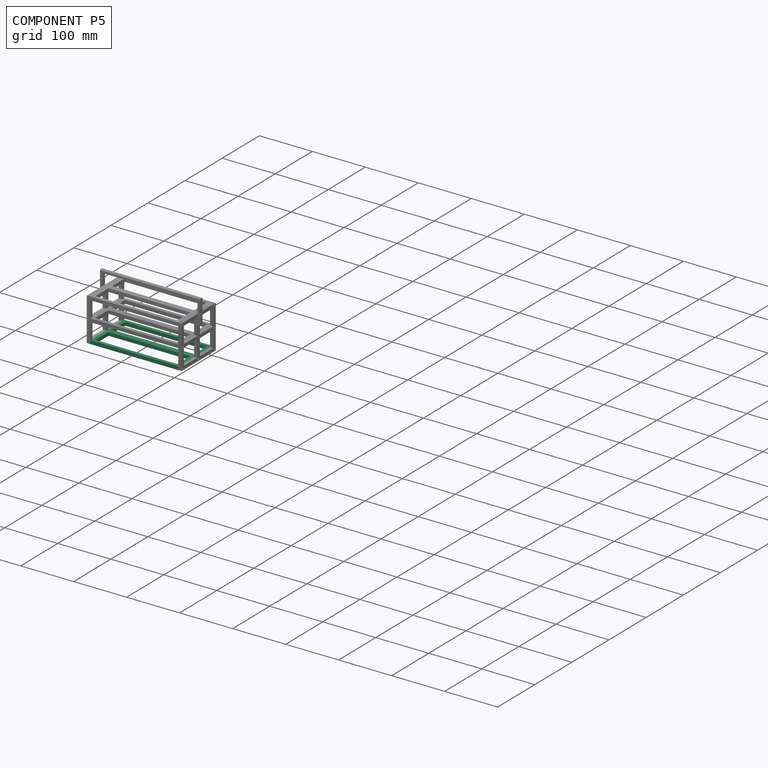
[diagram: component P5 — assembled]
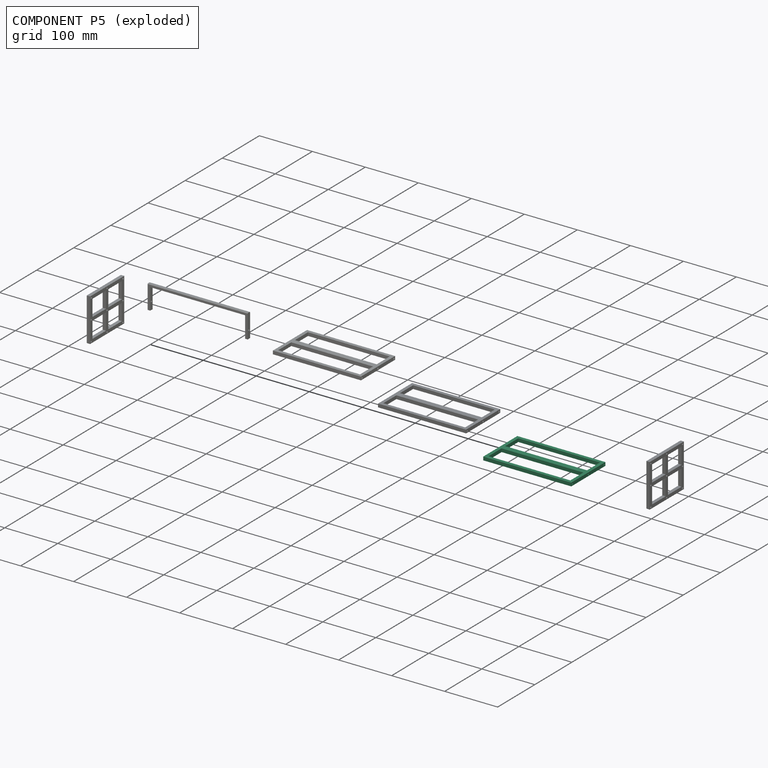
[diagram: component P5 — exploded]
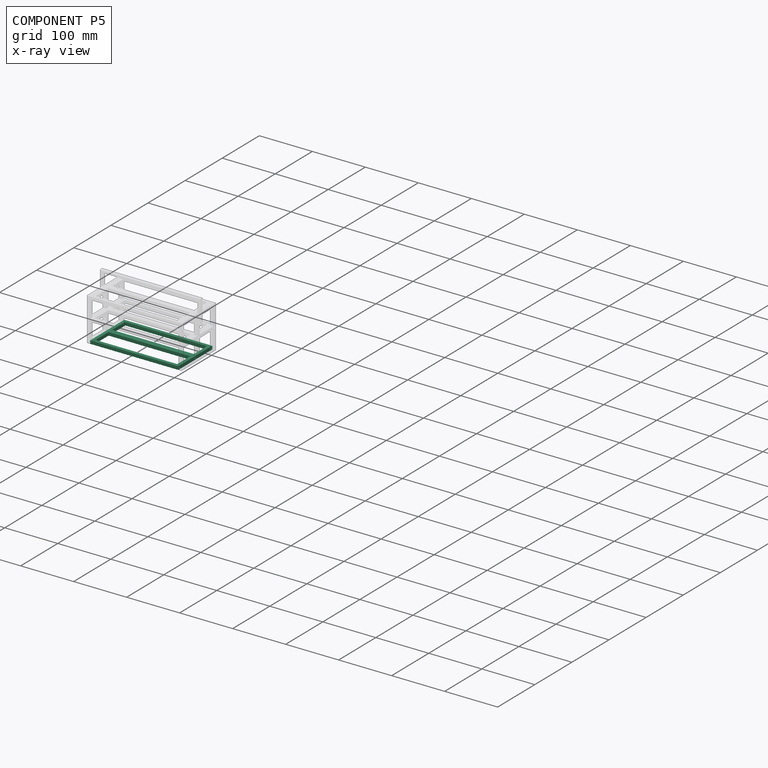
[diagram: component P5 — x-ray view]
COMPONENT P5 — same part as P1 (CADFS 00202748); its construction recipe is shown at P1.
Held by: PLANAR mate "Planar 3" to P0.
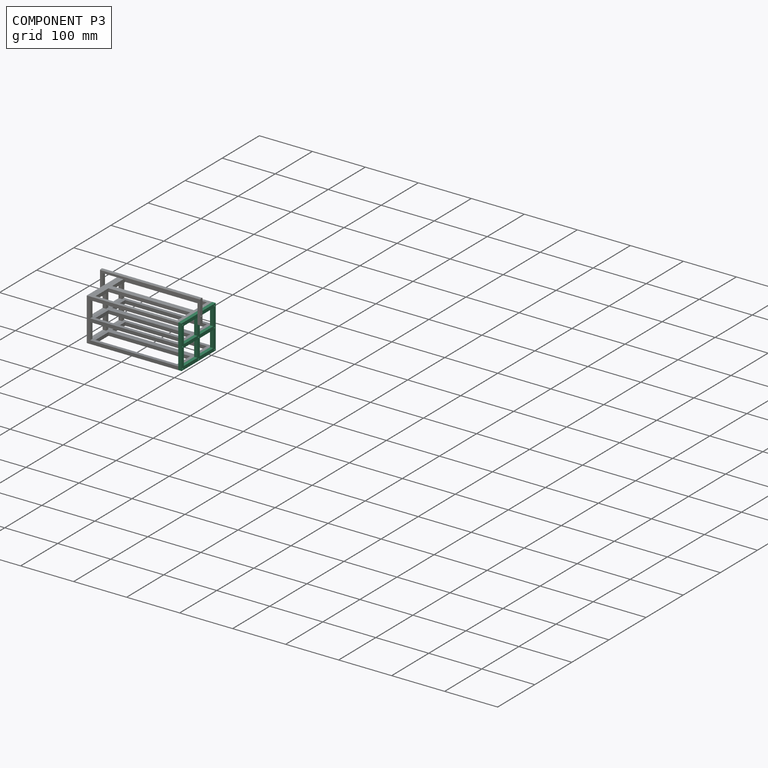
[diagram: component P3 — assembled]
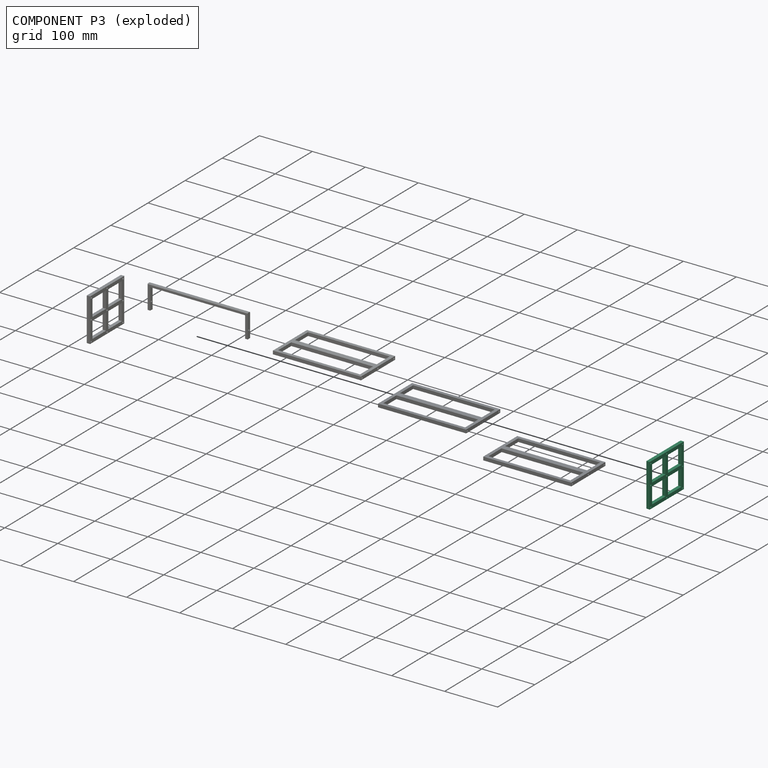
[diagram: component P3 — exploded]
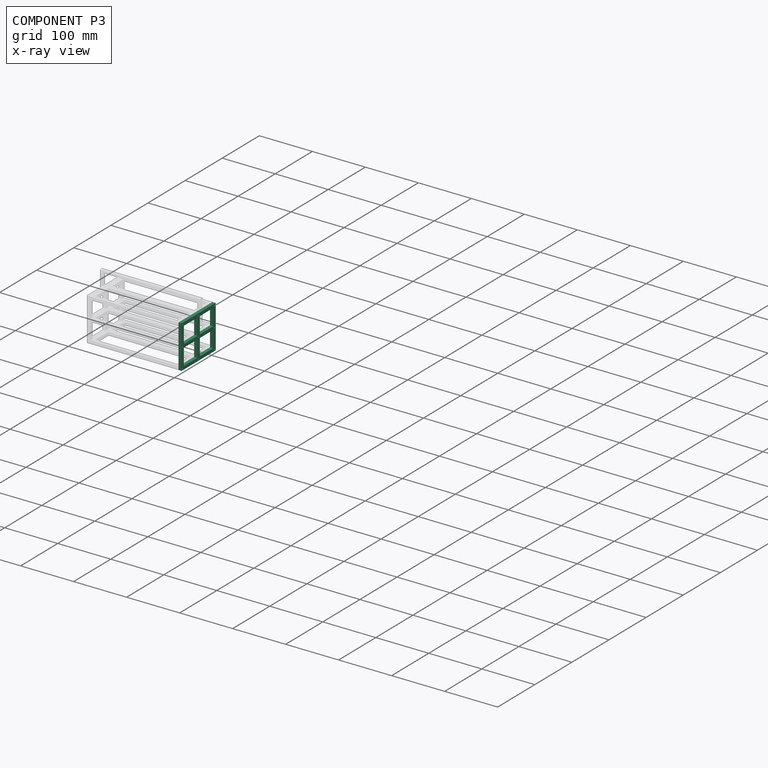
[diagram: component P3 — x-ray view]
COMPONENT P3 — same part as P0 (CADFS 00202749); its construction recipe is shown at P0.
Held by: PLANAR mate "Planar 4" to P4; PLANAR mate "Planar 5" to P2.
PROVENANCE & LICENSES
Assembly (occurrences, transforms, mates, per-part STEP geometry): AutoMate dataset, Zenodo record 7776208, CC0.
Construction recipes: CADFS (HuggingFace VladPyatov/CADFS, CC-BY-4.0, layered over the ABC dataset), FeatureScript reconstruction programs keyed by ABC model id.
Join: ABC meta listings map ABC model id -> Onshape documentId; within a shared document, parts are matched by geometric signature (bounding-box dims + volume at 0.1% relative tolerance, exact B-rep face/solid counts).
Verification: 6 of this assembly's 6 components carry a recipe attachment, and every attachment is mesh-verified: the CADFS STEP and the AutoMate member STEP were compared as meshes in their shared local frame (symmetric sampled-point-to-mesh distance); worst across the 6 attachments: below the mesh-comparison resolution (tessellation chordal tolerance ~0.291 mm) on a 194 mm part.
Renders: orthographic iso camera (az 35 / el 25); the floor grid conveys scale (grid pitch printed in each image; no ruler). In the exploded view each component is displaced by its stored offset vector: the offsets alone carry the explosion direction (mate normal/axis signs are not orientation cues and do not encode it), and separation distances are assigned per mate-chain, not proportionally to assembly-order depth.
